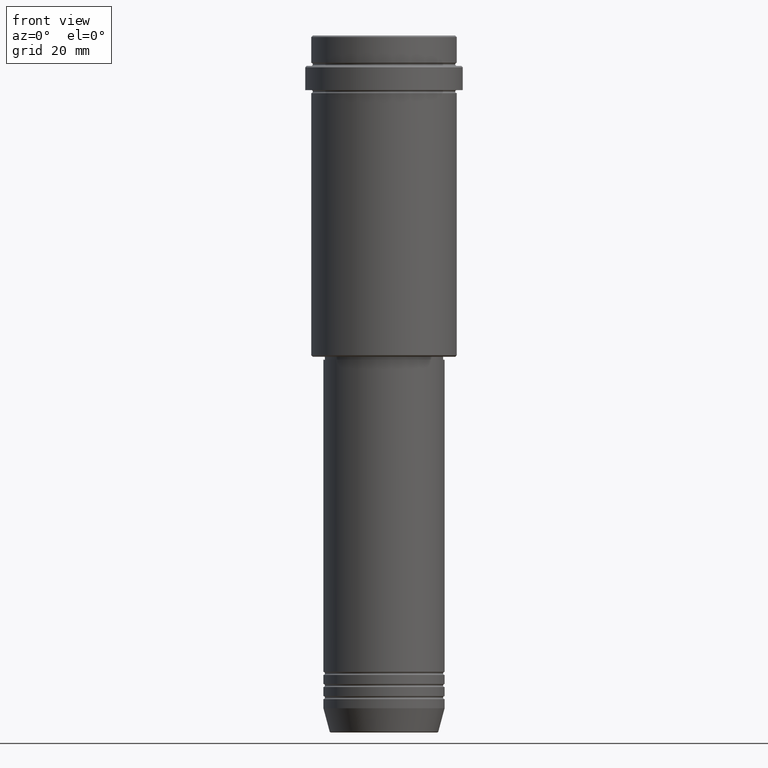
[diagram: clean part render]
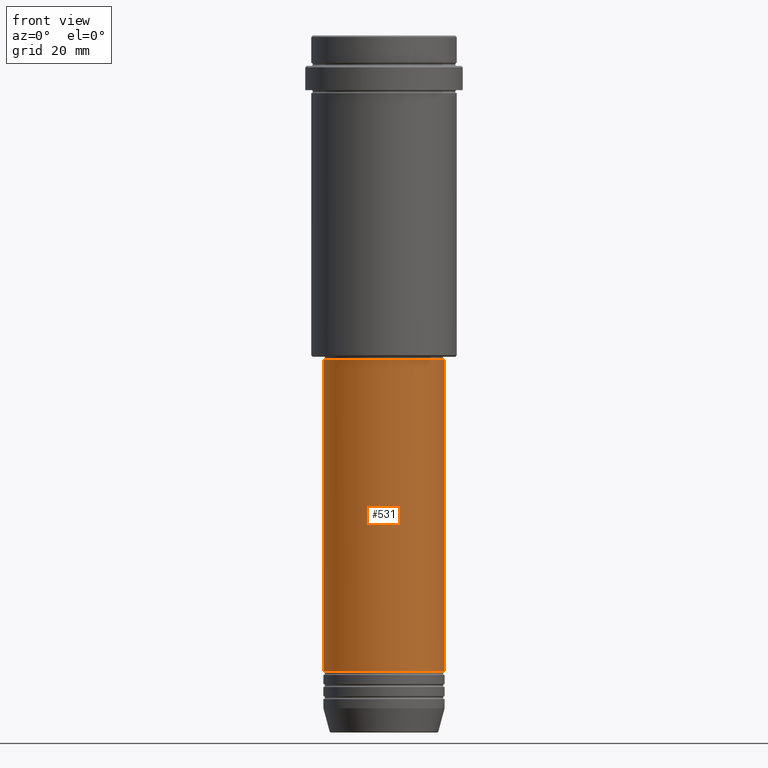
[diagram: same view with one face highlighted and labeled with its STEP entity id]
A machine part, front view. The second image highlights one B-rep face of the part: STEP entity #531.
In plain terms, the highlighted cylindrical surface (partial cylindrical patch) has radius 20 mm, axis along (-0, -0, 1).
Its self-contained STEP definition (entity closure, byte-faithful):
#43 = VECTOR ( 'NONE', #1009, 1000.000000000000000 ) ;
#47 = EDGE_CURVE ( 'NONE', #753, #846, #1006, .T. ) ;
#102 = ORIENTED_EDGE ( 'NONE', *, *, #1245, .F. ) ;
#125 = CYLINDRICAL_SURFACE ( 'NONE', #579, 20.00000000000000000 ) ;
#165 = CIRCLE ( 'NONE', #373, 20.00000000000000000 ) ;
#173 = CARTESIAN_POINT ( 'NONE',  ( 20.00000000000000000, 0.000000000000000000, -107.0000000000000000 ) ) ;
#221 = DIRECTION ( 'NONE',  ( 1.000000000000000000, 0.000000000000000000, 0.000000000000000000 ) ) ;
#228 = DIRECTION ( 'NONE',  ( -0.000000000000000000, -0.000000000000000000, 1.000000000000000000 ) ) ;
#267 = CARTESIAN_POINT ( 'NONE',  ( 20.00000000000000000, 0.000000000000000000, -209.9999999999998863 ) ) ;
#319 = EDGE_CURVE ( 'NONE', #705, #846, #165, .T. ) ;
#324 = CIRCLE ( 'NONE', #1043, 20.00000000000000000 ) ;
#373 = AXIS2_PLACEMENT_3D ( 'NONE', #1338, #228, #778 ) ;
#445 = CARTESIAN_POINT ( 'NONE',  ( -20.00000000000000000, 2.449293598294706513E-15, 0.000000000000000000 ) ) ;
#496 = VECTOR ( 'NONE', #884, 1000.000000000000000 ) ;
#528 = LINE ( 'NONE', #445, #496 ) ;
#531 = ADVANCED_FACE ( 'NONE', ( #1107 ), #125, .T. ) ;
#579 = AXIS2_PLACEMENT_3D ( 'NONE', #1215, #657, #221 ) ;
#596 = CARTESIAN_POINT ( 'NONE',  ( 0.000000000000000000, 0.000000000000000000, -209.9999999999998863 ) ) ;
#636 = EDGE_LOOP ( 'NONE', ( #102, #641, #936, #1335 ) ) ;
#641 = ORIENTED_EDGE ( 'NONE', *, *, #677, .T. ) ;
#657 = DIRECTION ( 'NONE',  ( -0.000000000000000000, -0.000000000000000000, 1.000000000000000000 ) ) ;
#677 = EDGE_CURVE ( 'NONE', #752, #753, #324, .T. ) ;
#705 = VERTEX_POINT ( 'NONE', #1363 ) ;
#752 = VERTEX_POINT ( 'NONE', #1250 ) ;
#753 = VERTEX_POINT ( 'NONE', #267 ) ;
#778 = DIRECTION ( 'NONE',  ( 1.000000000000000000, 0.000000000000000000, 0.000000000000000000 ) ) ;
#846 = VERTEX_POINT ( 'NONE', #173 ) ;
#884 = DIRECTION ( 'NONE',  ( -0.000000000000000000, -0.000000000000000000, 1.000000000000000000 ) ) ;
#936 = ORIENTED_EDGE ( 'NONE', *, *, #47, .T. ) ;
#1006 = LINE ( 'NONE', #1141, #43 ) ;
#1009 = DIRECTION ( 'NONE',  ( -0.000000000000000000, -0.000000000000000000, 1.000000000000000000 ) ) ;
#1043 = AXIS2_PLACEMENT_3D ( 'NONE', #596, #1242, #1344 ) ;
#1107 = FACE_OUTER_BOUND ( 'NONE', #636, .T. ) ;
#1141 = CARTESIAN_POINT ( 'NONE',  ( 20.00000000000000000, 0.000000000000000000, 0.000000000000000000 ) ) ;
#1215 = CARTESIAN_POINT ( 'NONE',  ( 0.000000000000000000, 0.000000000000000000, 0.000000000000000000 ) ) ;
#1242 = DIRECTION ( 'NONE',  ( -0.000000000000000000, -0.000000000000000000, 1.000000000000000000 ) ) ;
#1245 = EDGE_CURVE ( 'NONE', #752, #705, #528, .T. ) ;
#1250 = CARTESIAN_POINT ( 'NONE',  ( -20.00000000000000000, 2.449293598294706513E-15, -209.9999999999998863 ) ) ;
#1335 = ORIENTED_EDGE ( 'NONE', *, *, #319, .F. ) ;
#1338 = CARTESIAN_POINT ( 'NONE',  ( 0.000000000000000000, 0.000000000000000000, -107.0000000000000000 ) ) ;
#1344 = DIRECTION ( 'NONE',  ( 1.000000000000000000, 0.000000000000000000, 0.000000000000000000 ) ) ;
#1363 = CARTESIAN_POINT ( 'NONE',  ( -20.00000000000000000, 2.449293598294706513E-15, -107.0000000000000000 ) ) ;